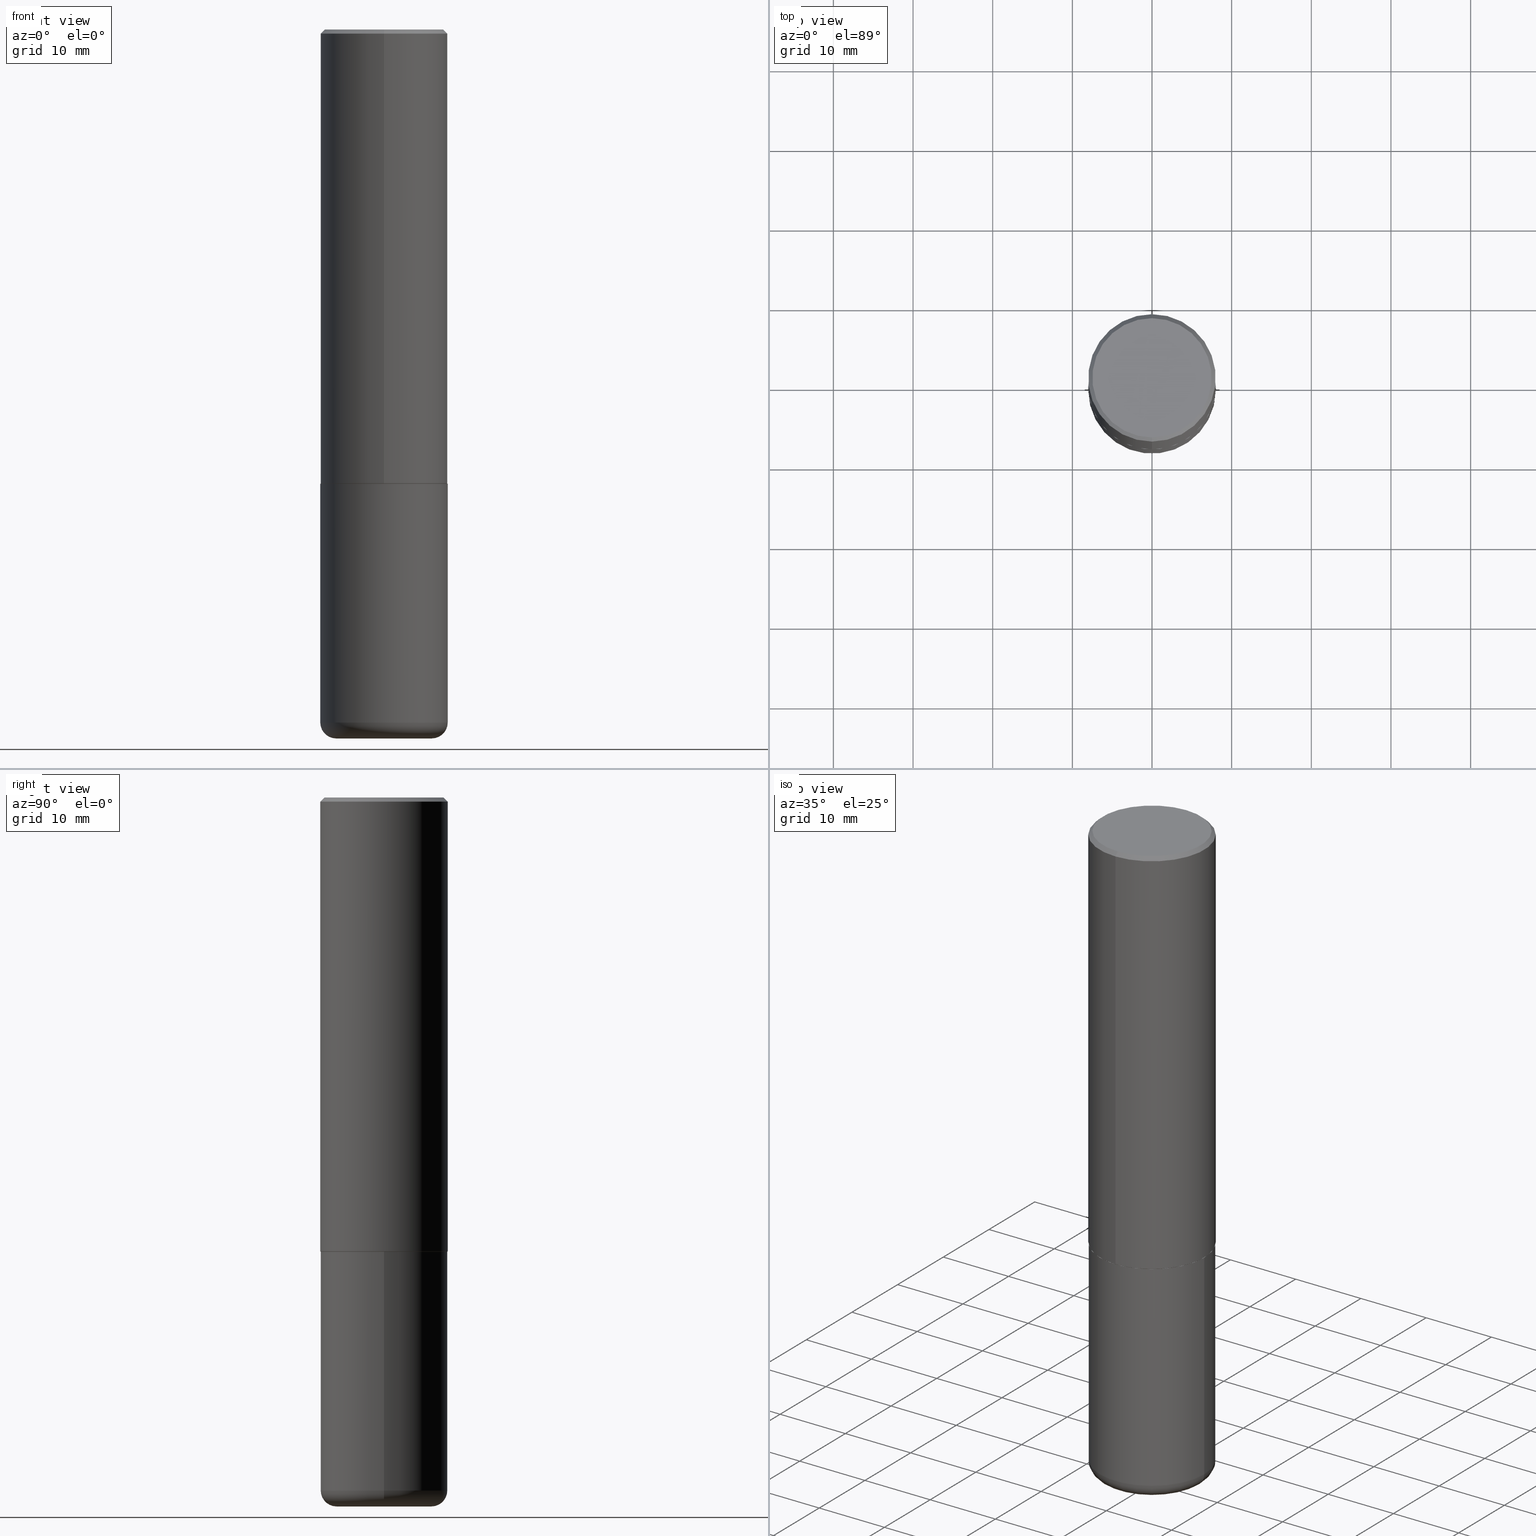
[diagram: canonical four-view strip — front | top / right | iso, engineering-drawing reading convention]
A machine part, canonical four-view strip (front | top / right | iso — engineering-drawing reading convention). The complete STEP part file that produces these views, byte-faithful:
ISO-10303-21;
HEADER;
FILE_DESCRIPTION (( 'STEP AP203' ),
    '1' );
FILE_NAME ('40039.STEP',
    '2024-03-03T22:05:30',
    ( '' ),
    ( '' ),
    'SwSTEP 2.0',
    'SolidWorks 2023',
    '' );
FILE_SCHEMA (( 'CONFIG_CONTROL_DESIGN' ));
ENDSEC;

DATA;
#1 = ORIENTED_EDGE ( 'NONE', *, *, #224, .T. ) ;
#2 = VECTOR ( 'NONE', #98, 39.37007874015748854 ) ;
#3 = EDGE_LOOP ( 'NONE', ( #384, #321, #167, #15 ) ) ;
#4 = APPROVAL_ROLE ( '' ) ;
#5 = EDGE_CURVE ( 'NONE', #13, #195, #62, .T. ) ;
#6 = DIRECTION ( 'NONE',  ( -2.445102122258518808E-29, 3.492006451096415256E-15, 1.000000000000000000 ) ) ;
#7 = ORIENTED_EDGE ( 'NONE', *, *, #312, .T. ) ;
#8 = DIRECTION ( 'NONE',  ( 1.000000000000000000, 0.000000000000000000, 0.000000000000000000 ) ) ;
#9 = EDGE_LOOP ( 'NONE', ( #302, #267, #309, #370 ) ) ;
#10 = VECTOR ( 'NONE', #311, 39.37007874015748143 ) ;
#11 = AXIS2_PLACEMENT_3D ( 'NONE', #23, #407, #378 ) ;
#12 = EDGE_CURVE ( 'NONE', #195, #274, #61, .T. ) ;
#13 = VERTEX_POINT ( 'NONE', #159 ) ;
#14 = CARTESIAN_POINT ( 'NONE',  ( 0.000000000000000000, 0.000000000000000000, 0.000000000000000000 ) ) ;
#15 = ORIENTED_EDGE ( 'NONE', *, *, #96, .F. ) ;
#16 = DIRECTION ( 'NONE',  ( -6.982962677686264344E-15, -1.000000000000000000, 3.492006451096414862E-15 ) ) ;
#17 = AXIS2_PLACEMENT_3D ( 'NONE', #188, #324, #24 ) ;
#18 = DIRECTION ( 'NONE',  ( -2.445102122258518808E-29, 3.492006451096415256E-15, 1.000000000000000000 ) ) ;
#19 = PRODUCT_DEFINITION_SHAPE ( 'NONE', 'NONE',  #364 ) ;
#20 = PERSON_AND_ORGANIZATION_ROLE ( 'classification_officer' ) ;
#21 = ORIENTED_EDGE ( 'NONE', *, *, #118, .F. ) ;
#22 = CC_DESIGN_DATE_AND_TIME_ASSIGNMENT ( #310, #291, ( #364 ) ) ;
#23 = CARTESIAN_POINT ( 'NONE',  ( 4.890204244517054362E-31, -6.984012902192854425E-17, -0.02000000000000006981 ) ) ;
#24 = DIRECTION ( 'NONE',  ( 1.000000000000000000, -6.982962677686266711E-15, 4.876176775795936353E-29 ) ) ;
#25 = CARTESIAN_POINT ( 'NONE',  ( 4.890204244517054362E-31, -6.984012902192854425E-17, -0.02000000000000006981 ) ) ;
#26 = ORIENTED_EDGE ( 'NONE', *, *, #66, .T. ) ;
#27 = DIRECTION ( 'NONE',  ( 1.000000000000000000, -6.982962677686276177E-15, 0.000000000000000000 ) ) ;
#28 = CIRCLE ( 'NONE', #398, 0.2362500000000000155 ) ;
#29 = DIRECTION ( 'NONE',  ( -2.445102122258518808E-29, 3.492006451096415256E-15, 1.000000000000000000 ) ) ;
#30 = VECTOR ( 'NONE', #323, 39.37007874015748143 ) ;
#31 = ORIENTED_EDGE ( 'NONE', *, *, #237, .F. ) ;
#32 = EDGE_CURVE ( 'NONE', #303, #381, #87, .T. ) ;
#33 = FACE_OUTER_BOUND ( 'NONE', #9, .T. ) ;
#34 = EDGE_LOOP ( 'NONE', ( #293, #184 ) ) ;
#35 = ORIENTED_EDGE ( 'NONE', *, *, #175, .F. ) ;
#36 = CARTESIAN_POINT ( 'NONE',  ( -0.2362500000000000155, -1.028036466857230575E-14, -3.425199999999999800 ) ) ;
#37 = VECTOR ( 'NONE', #230, 39.37007874015748854 ) ;
#38 = EDGE_CURVE ( 'NONE', #243, #303, #226, .T. ) ;
#39 = DIRECTION ( 'NONE',  ( -2.445102122258518808E-29, 3.492006451096415256E-15, 1.000000000000000000 ) ) ;
#40 = VERTEX_POINT ( 'NONE', #389 ) ;
#41 = CARTESIAN_POINT ( 'NONE',  ( 2.237854346276435985E-15, 0.3149500000000001743, -1.099807431772816467E-15 ) ) ;
#42 = ORIENTED_EDGE ( 'NONE', *, *, #66, .F. ) ;
#43 = APPLICATION_PROTOCOL_DEFINITION ( 'international standard', 'config_control_design', 1994, #340 ) ;
#44 = AXIS2_PLACEMENT_3D ( 'NONE', #235, #201, #16 ) ;
#45 = ORIENTED_EDGE ( 'NONE', *, *, #168, .F. ) ;
#46 = CARTESIAN_POINT ( 'NONE',  ( 5.487053672560341153E-29, -7.836411676905464686E-15, -2.244099999999999540 ) ) ;
#47 = CALENDAR_DATE ( 2024, 3, 3 ) ;
#48 = PRODUCT_RELATED_PRODUCT_CATEGORY ( 'detail', '', ( #285 ) ) ;
#49 = CIRCLE ( 'NONE', #289, 0.3149500000000000077 ) ;
#50 = LOCAL_TIME ( 17, 5, 30.00000000000000000, #171 ) ;
#51 = VERTEX_POINT ( 'NONE', #356 ) ;
#52 = DATE_TIME_ROLE ( 'classification_date' ) ;
#53 = LINE ( 'NONE', #147, #103 ) ;
#54 = EDGE_CURVE ( 'NONE', #262, #51, #314, .T. ) ;
#55 = CC_DESIGN_APPROVAL ( #79, ( #64 ) ) ;
#56 = CYLINDRICAL_SURFACE ( 'NONE', #17, 0.3149500000000000077 ) ;
#57 = ORIENTED_EDGE ( 'NONE', *, *, #175, .T. ) ;
#58 = DIRECTION ( 'NONE',  ( 1.000000000000000000, -6.982962677686269866E-15, 0.000000000000000000 ) ) ;
#59 = ORIENTED_EDGE ( 'NONE', *, *, #122, .T. ) ;
#60 = EDGE_CURVE ( 'NONE', #381, #320, #74, .T. ) ;
#61 = LINE ( 'NONE', #228, #193 ) ;
#62 = CIRCLE ( 'NONE', #210, 0.2949499999999999345 ) ;
#63 = DIRECTION ( 'NONE',  ( -2.445468806185136597E-29, 3.491481338843145583E-15, 1.000000000000000000 ) ) ;
#64 = PRODUCT_DEFINITION_FORMATION_WITH_SPECIFIED_SOURCE ( 'ANY', '', #285, .NOT_KNOWN. ) ;
#65 = ORIENTED_EDGE ( 'NONE', *, *, #12, .F. ) ;
#66 = EDGE_CURVE ( 'NONE', #320, #40, #191, .T. ) ;
#67 = DIRECTION ( 'NONE',  ( -2.445102122258518808E-29, 3.492006451096415256E-15, 1.000000000000000000 ) ) ;
#68 = CARTESIAN_POINT ( 'NONE',  ( 2.230748918918889014E-15, 0.3139499999999921798, -2.244100000000000872 ) ) ;
#69 = VERTEX_POINT ( 'NONE', #93 ) ;
#70 =( CONVERSION_BASED_UNIT ( 'INCH', #304 ) LENGTH_UNIT ( ) NAMED_UNIT ( #260 ) );
#71 = DIRECTION ( 'NONE',  ( 0.000000000000000000, 0.000000000000000000, 1.000000000000000000 ) ) ;
#72 = CARTESIAN_POINT ( 'NONE',  ( -2.192301132659548636E-15, -0.3139500000000078339, -2.244099999999998651 ) ) ;
#73 = APPROVAL_STATUS ( 'not_yet_approved' ) ;
#74 = CIRCLE ( 'NONE', #239, 0.3149500000000000077 ) ;
#75 = PERSON_AND_ORGANIZATION ( #134, #221 ) ;
#76 = CIRCLE ( 'NONE', #272, 0.3139500000000000068 ) ;
#77 = DIRECTION ( 'NONE',  ( -2.445468806185136597E-29, 3.491481338843145583E-15, 1.000000000000000000 ) ) ;
#78 = PERSON_AND_ORGANIZATION ( #134, #221 ) ;
#79 = APPROVAL ( #316, 'UNSPECIFIED' ) ;
#80 = CARTESIAN_POINT ( 'NONE',  ( 5.484608570438081455E-29, -7.832919670454367656E-15, -2.243099999999999206 ) ) ;
#81 = PERSON_AND_ORGANIZATION ( #134, #221 ) ;
#82 = CIRCLE ( 'NONE', #387, 0.3139500000000000068 ) ;
#83 = COORDINATED_UNIVERSAL_TIME_OFFSET ( 5, 0, .BEHIND. ) ;
#84 = LINE ( 'NONE', #186, #30 ) ;
#85 = PERSON_AND_ORGANIZATION ( #134, #221 ) ;
#86 = DIRECTION ( 'NONE',  ( -6.982962677686266711E-15, -1.000000000000000000, 3.491481338843145583E-15 ) ) ;
#87 = CIRCLE ( 'NONE', #108, 0.07870000000000021423 ) ;
#88 = CARTESIAN_POINT ( 'NONE',  ( 2.237854346276464384E-15, 0.3149499999999924027, -2.243100000000000538 ) ) ;
#89 = ORIENTED_EDGE ( 'NONE', *, *, #5, .F. ) ;
#90 = CC_DESIGN_DATE_AND_TIME_ASSIGNMENT ( #278, #52, ( #113 ) ) ;
#91 = ORIENTED_EDGE ( 'NONE', *, *, #232, .T. ) ;
#92 = LINE ( 'NONE', #234, #37 ) ;
#93 = CARTESIAN_POINT ( 'NONE',  ( 2.234301632597690306E-15, 0.3139499999999921798, -2.244100000000000872 ) ) ;
#94 = AXIS2_PLACEMENT_3D ( 'NONE', #202, #270, #101 ) ;
#95 = AXIS2_PLACEMENT_3D ( 'NONE', #371, #71, #8 ) ;
#96 = EDGE_CURVE ( 'NONE', #238, #51, #92, .T. ) ;
#97 = FACE_OUTER_BOUND ( 'NONE', #156, .T. ) ;
#98 = DIRECTION ( 'NONE',  ( 5.024295867787889629E-15, 0.7071067811865257013, 0.7071067811865691111 ) ) ;
#99 = EDGE_LOOP ( 'NONE', ( #42, #229, #119, #271 ) ) ;
#100 = DATE_AND_TIME ( #130, #50 ) ;
#101 = DIRECTION ( 'NONE',  ( -1.000000000000000000, 6.982962677686265922E-15, -4.876176775795935793E-29 ) ) ;
#102 = VECTOR ( 'NONE', #173, 39.37007874015748143 ) ;
#103 = VECTOR ( 'NONE', #305, 39.37007874015748143 ) ;
#104 = ADVANCED_FACE ( 'NONE', ( #148 ), #415, .T. ) ;
#105 =( LENGTH_UNIT ( ) NAMED_UNIT ( * ) SI_UNIT ( $, .METRE. ) );
#106 = ORIENTED_EDGE ( 'NONE', *, *, #32, .T. ) ;
#107 = FACE_OUTER_BOUND ( 'NONE', #339, .T. ) ;
#108 = AXIS2_PLACEMENT_3D ( 'NONE', #391, #86, #27 ) ;
#109 = LOCAL_TIME ( 17, 5, 30.00000000000000000, #83 ) ;
#110 = PERSON_AND_ORGANIZATION_ROLE ( 'creator' ) ;
#111 = CALENDAR_DATE ( 2024, 3, 3 ) ;
#112 = PERSON_AND_ORGANIZATION ( #134, #221 ) ;
#113 = SECURITY_CLASSIFICATION ( '', '', #251 ) ;
#114 = ADVANCED_FACE ( 'NONE', ( #353 ), #56, .T. ) ;
#115 = CARTESIAN_POINT ( 'NONE',  ( 8.568678149992100595E-29, -1.223380146317249944E-14, -3.503900000000000237 ) ) ;
#116 = CARTESIAN_POINT ( 'NONE',  ( 5.487876547960063631E-29, -7.835233272497900762E-15, -2.244099999999999540 ) ) ;
#117 = AXIS2_PLACEMENT_3D ( 'NONE', #236, #6, #400 ) ;
#118 = EDGE_CURVE ( 'NONE', #395, #40, #336, .T. ) ;
#119 = ORIENTED_EDGE ( 'NONE', *, *, #413, .T. ) ;
#120 = DIRECTION ( 'NONE',  ( -2.445468806185136877E-29, 3.491481338843145188E-15, 1.000000000000000000 ) ) ;
#121 = ORIENTED_EDGE ( 'NONE', *, *, #263, .F. ) ;
#122 = EDGE_CURVE ( 'NONE', #40, #395, #256, .T. ) ;
#123 = ORIENTED_EDGE ( 'NONE', *, *, #38, .T. ) ;
#124 = DIRECTION ( 'NONE',  ( -2.445468806185136597E-29, 3.491481338843145583E-15, 1.000000000000000000 ) ) ;
#125 = VECTOR ( 'NONE', #120, 39.37007874015748143 ) ;
#126 = CC_DESIGN_SECURITY_CLASSIFICATION ( #113, ( #64 ) ) ;
#127 = EDGE_LOOP ( 'NONE', ( #121, #266 ) ) ;
#128 = DIRECTION ( 'NONE',  ( -1.000000000000000000, 7.105427357600997914E-15, 0.000000000000000000 ) ) ;
#129 = ORIENTED_EDGE ( 'NONE', *, *, #32, .F. ) ;
#130 = CALENDAR_DATE ( 2024, 3, 3 ) ;
#131 = MECHANICAL_CONTEXT ( 'NONE', #340, 'mechanical' ) ;
#132 = CARTESIAN_POINT ( 'NONE',  ( 8.568678149992100595E-29, -1.223380146317249944E-14, -3.503900000000000237 ) ) ;
#133 = AXIS2_PLACEMENT_3D ( 'NONE', #14, #63, #402 ) ;
#134 = PERSON ( 'UNSPECIFIED', 'UNSPECIFIED', 'UNSPECIFIED', ('UNSPECIFIED'), ('UNSPECIFIED'), ('UNSPECIFIED') ) ;
#135 = ORIENTED_EDGE ( 'NONE', *, *, #54, .T. ) ;
#136 = APPROVAL ( #223, 'UNSPECIFIED' ) ;
#137 = APPROVAL_DATE_TIME ( #282, #79 ) ;
#138 = CARTESIAN_POINT ( 'NONE',  ( -0.3149500000000001743, -9.721167535529105379E-15, -3.425199999999999800 ) ) ;
#139 = APPROVAL_PERSON_ORGANIZATION ( #75, #300, #4 ) ;
#140 = DIRECTION ( 'NONE',  ( -6.982962677686265922E-15, -1.000000000000000000, 3.492006451096415256E-15 ) ) ;
#141 = FACE_OUTER_BOUND ( 'NONE', #194, .T. ) ;
#142 = DIRECTION ( 'NONE',  ( 2.438088387897960049E-29, -3.491481338843145188E-15, -1.000000000000000000 ) ) ;
#143 = PERSON_AND_ORGANIZATION_ROLE ( 'creator' ) ;
#144 = ADVANCED_FACE ( 'NONE', ( #200 ), #185, .T. ) ;
#145 = CALENDAR_DATE ( 2024, 3, 3 ) ;
#146 = AXIS2_PLACEMENT_3D ( 'NONE', #307, #166, #365 ) ;
#147 = CARTESIAN_POINT ( 'NONE',  ( 0.3149500000000000077, -2.199284095337289871E-15, 1.535751875536930130E-29 ) ) ;
#148 = FACE_OUTER_BOUND ( 'NONE', #3, .T. ) ;
#149 = CARTESIAN_POINT ( 'NONE',  ( 5.487876547960063631E-29, -7.835233272497900762E-15, -2.244099999999999540 ) ) ;
#150 = ADVANCED_FACE ( 'NONE', ( #169 ), #242, .T. ) ;
#151 = DESIGN_CONTEXT ( 'detailed design', #258, 'design' ) ;
#152 = DIRECTION ( 'NONE',  ( 4.937700262164543309E-15, 0.7071067811865444641, -0.7071067811865506814 ) ) ;
#153 = AXIS2_PLACEMENT_3D ( 'NONE', #360, #328, #417 ) ;
#154 = AXIS2_PLACEMENT_3D ( 'NONE', #245, #216, #292 ) ;
#155 = LOCAL_TIME ( 17, 5, 30.00000000000000000, #178 ) ;
#156 = EDGE_LOOP ( 'NONE', ( #390, #135, #212, #31 ) ) ;
#157 = ORIENTED_EDGE ( 'NONE', *, *, #232, .F. ) ;
#158 = LINE ( 'NONE', #41, #102 ) ;
#159 = CARTESIAN_POINT ( 'NONE',  ( -2.092108864420428031E-15, -0.2949499999999999345, 1.060001772040692191E-15 ) ) ;
#160 = CC_DESIGN_PERSON_AND_ORGANIZATION_ASSIGNMENT ( #246, #275, ( #285 ) ) ;
#161 = DIRECTION ( 'NONE',  ( -6.982962677686266711E-15, -1.000000000000000000, 3.480615376543096919E-15 ) ) ;
#162 = ORIENTED_EDGE ( 'NONE', *, *, #60, .F. ) ;
#163 = DIRECTION ( 'NONE',  ( 7.105427357601001859E-15, 1.000000000000000000, -3.491481338843145583E-15 ) ) ;
#164 = CIRCLE ( 'NONE', #374, 0.07870000000000021423 ) ;
#165 = DIRECTION ( 'NONE',  ( 2.445102122258518808E-29, -3.492006451096415256E-15, -1.000000000000000000 ) ) ;
#166 = DIRECTION ( 'NONE',  ( -2.445468806185136597E-29, 3.491481338843145583E-15, 1.000000000000000000 ) ) ;
#167 = ORIENTED_EDGE ( 'NONE', *, *, #385, .F. ) ;
#168 = EDGE_CURVE ( 'NONE', #320, #381, #49, .T. ) ;
#169 = FACE_OUTER_BOUND ( 'NONE', #227, .T. ) ;
#170 = DIRECTION ( 'NONE',  ( -6.982962677686267499E-15, -1.000000000000000000, 3.492006451096415256E-15 ) ) ;
#171 = COORDINATED_UNIVERSAL_TIME_OFFSET ( 5, 0, .BEHIND. ) ;
#172 = CLOSED_SHELL ( 'NONE', ( #114, #325, #196, #273, #144, #189 ) ) ;
#173 = DIRECTION ( 'NONE',  ( -2.445102122258518808E-29, 3.492006451096415256E-15, 1.000000000000000000 ) ) ;
#174 = CYLINDRICAL_SURFACE ( 'NONE', #133, 0.3149500000000000077 ) ;
#175 = EDGE_CURVE ( 'NONE', #243, #320, #164, .T. ) ;
#176 = ORIENTED_EDGE ( 'NONE', *, *, #118, .T. ) ;
#177 = CARTESIAN_POINT ( 'NONE',  ( 0.2362500000000000155, -1.388352639577588105E-14, -3.503900000000000237 ) ) ;
#178 = COORDINATED_UNIVERSAL_TIME_OFFSET ( 5, 0, .BEHIND. ) ;
#179 = AXIS2_PLACEMENT_3D ( 'NONE', #215, #142, #286 ) ;
#180 = CARTESIAN_POINT ( 'NONE',  ( 5.487053672560341153E-29, -7.836411676905464686E-15, -2.244099999999999540 ) ) ;
#181 = DIRECTION ( 'NONE',  ( 6.982962677686265922E-15, 1.000000000000000000, -3.492006451096415256E-15 ) ) ;
#182 = EDGE_CURVE ( 'NONE', #69, #262, #269, .T. ) ;
#183 = DIRECTION ( 'NONE',  ( 2.445102122258518528E-29, -3.492006451096415256E-15, -1.000000000000000000 ) ) ;
#184 = ORIENTED_EDGE ( 'NONE', *, *, #268, .F. ) ;
#185 = TOROIDAL_SURFACE ( 'NONE', #146, 0.2362500000000000155, 0.07870000000000022811 ) ;
#186 = CARTESIAN_POINT ( 'NONE',  ( -2.199284095337290265E-15, -0.3149500000000001743, 1.099807431772816467E-15 ) ) ;
#187 = AXIS2_PLACEMENT_3D ( 'NONE', #80, #18, #349 ) ;
#188 = CARTESIAN_POINT ( 'NONE',  ( 0.000000000000000000, 0.000000000000000000, 0.000000000000000000 ) ) ;
#189 = ADVANCED_FACE ( 'NONE', ( #366 ), #368, .T. ) ;
#190 = ORIENTED_EDGE ( 'NONE', *, *, #224, .F. ) ;
#191 = LINE ( 'NONE', #298, #125 ) ;
#192 = EDGE_LOOP ( 'NONE', ( #351, #157, #199, #204 ) ) ;
#193 = VECTOR ( 'NONE', #152, 39.37007874015748143 ) ;
#194 = EDGE_LOOP ( 'NONE', ( #91, #222 ) ) ;
#195 = VERTEX_POINT ( 'NONE', #206 ) ;
#196 = ADVANCED_FACE ( 'NONE', ( #338 ), #319, .F. ) ;
#197 = DIRECTION ( 'NONE',  ( -2.445102122258518808E-29, 3.492006451096415256E-15, 1.000000000000000000 ) ) ;
#198 = CARTESIAN_POINT ( 'NONE',  ( 5.487053672560341153E-29, -7.836411676905464686E-15, -2.244099999999999540 ) ) ;
#199 = ORIENTED_EDGE ( 'NONE', *, *, #12, .T. ) ;
#200 = FACE_OUTER_BOUND ( 'NONE', #326, .T. ) ;
#201 = DIRECTION ( 'NONE',  ( -2.445102122258518808E-29, 3.492006451096415256E-15, 1.000000000000000000 ) ) ;
#202 = CARTESIAN_POINT ( 'NONE',  ( 2.910115444035764499E-29, -2.033718532349013866E-14, -3.503899999999999793 ) ) ;
#203 = EDGE_CURVE ( 'NONE', #262, #274, #158, .T. ) ;
#204 = ORIENTED_EDGE ( 'NONE', *, *, #237, .T. ) ;
#205 = APPROVAL_DATE_TIME ( #100, #300 ) ;
#206 = CARTESIAN_POINT ( 'NONE',  ( 2.129454468560426967E-15, 0.2949499999999999345, -9.999328334610827920E-16 ) ) ;
#207 = PERSON_AND_ORGANIZATION ( #134, #221 ) ;
#208 = CC_DESIGN_PERSON_AND_ORGANIZATION_ASSIGNMENT ( #85, #344, ( #64 ) ) ;
#209 = CARTESIAN_POINT ( 'NONE',  ( -0.2362500000000000155, -1.013815589273418302E-14, -3.503900000000000237 ) ) ;
#210 = AXIS2_PLACEMENT_3D ( 'NONE', #299, #412, #330 ) ;
#211 = APPROVAL_PERSON_ORGANIZATION ( #250, #136, #383 ) ;
#212 = ORIENTED_EDGE ( 'NONE', *, *, #369, .T. ) ;
#213 = DIRECTION ( 'NONE',  ( -6.982962677686266711E-15, -1.000000000000000000, 3.480615376543096919E-15 ) ) ;
#214 = DIRECTION ( 'NONE',  ( -2.445102122258518808E-29, 3.492006451096415256E-15, 1.000000000000000000 ) ) ;
#215 = CARTESIAN_POINT ( 'NONE',  ( 5.487876547960063631E-29, -7.835233272497900762E-15, -2.244099999999999540 ) ) ;
#216 = DIRECTION ( 'NONE',  ( -2.445102122258518808E-29, 3.492006451096415256E-15, 1.000000000000000000 ) ) ;
#217 = COORDINATED_UNIVERSAL_TIME_OFFSET ( 5, 0, .BEHIND. ) ;
#218 = DIRECTION ( 'NONE',  ( -6.982962677686266711E-15, -1.000000000000000000, 3.480615376543096919E-15 ) ) ;
#219 = CIRCLE ( 'NONE', #393, 0.2949499999999999345 ) ;
#220 = CONICAL_SURFACE ( 'NONE', #11, 0.3149500000000000077, 0.7853981633974473908 ) ;
#221 = ORGANIZATION ( 'UNSPECIFIED', 'UNSPECIFIED', '' ) ;
#222 = ORIENTED_EDGE ( 'NONE', *, *, #5, .T. ) ;
#223 = APPROVAL_STATUS ( 'not_yet_approved' ) ;
#224 = EDGE_CURVE ( 'NONE', #277, #274, #411, .T. ) ;
#225 = DIRECTION ( 'NONE',  ( -6.982962677686265922E-15, -1.000000000000000000, 3.469564049740290009E-15 ) ) ;
#226 = CIRCLE ( 'NONE', #354, 0.2362500000000000155 ) ;
#227 = EDGE_LOOP ( 'NONE', ( #401, #388, #190, #264 ) ) ;
#228 = CARTESIAN_POINT ( 'NONE',  ( 2.199284095337289871E-15, 0.3149499999999999522, -0.02000000000000116962 ) ) ;
#229 = ORIENTED_EDGE ( 'NONE', *, *, #168, .T. ) ;
#230 = DIRECTION ( 'NONE',  ( -4.937700262164378437E-15, -0.7071067811865208164, 0.7071067811865739960 ) ) ;
#231 = ORIENTED_EDGE ( 'NONE', *, *, #263, .T. ) ;
#232 = EDGE_CURVE ( 'NONE', #195, #13, #219, .T. ) ;
#233 = AXIS2_PLACEMENT_3D ( 'NONE', #373, #77, #394 ) ;
#234 = CARTESIAN_POINT ( 'NONE',  ( -2.192301132659548636E-15, -0.3139500000000078339, -2.244099999999998651 ) ) ;
#235 = CARTESIAN_POINT ( 'NONE',  ( 0.000000000000000000, 0.000000000000000000, 0.000000000000000000 ) ) ;
#236 = CARTESIAN_POINT ( 'NONE',  ( 0.000000000000000000, 0.000000000000000000, 0.000000000000000000 ) ) ;
#237 = EDGE_CURVE ( 'NONE', #274, #277, #345, .T. ) ;
#238 = VERTEX_POINT ( 'NONE', #72 ) ;
#239 = AXIS2_PLACEMENT_3D ( 'NONE', #259, #358, #58 ) ;
#240 = AXIS2_PLACEMENT_3D ( 'NONE', #347, #183, #181 ) ;
#241 = ORIENTED_EDGE ( 'NONE', *, *, #413, .F. ) ;
#242 = CYLINDRICAL_SURFACE ( 'NONE', #117, 0.3149500000000001743 ) ;
#243 = VERTEX_POINT ( 'NONE', #209 ) ;
#244 = CARTESIAN_POINT ( 'NONE',  ( 8.376219754945329068E-29, -1.195902188180554136E-14, -3.425199999999999800 ) ) ;
#245 = CARTESIAN_POINT ( 'NONE',  ( 4.890204244517054362E-31, -6.984012902192854425E-17, -0.02000000000000006981 ) ) ;
#246 = PERSON_AND_ORGANIZATION ( #134, #221 ) ;
#247 = CARTESIAN_POINT ( 'NONE',  ( 4.890204244517054362E-31, -6.984012902192854425E-17, -0.02000000000000006981 ) ) ;
#248 = DIRECTION ( 'NONE',  ( -6.982962677686265922E-15, -1.000000000000000000, 3.496670018878889100E-15 ) ) ;
#249 = DATE_AND_TIME ( #145, #109 ) ;
#250 = PERSON_AND_ORGANIZATION ( #134, #221 ) ;
#251 = SECURITY_CLASSIFICATION_LEVEL ( 'unclassified' ) ;
#252 = TOROIDAL_SURFACE ( 'NONE', #233, 0.2362500000000000155, 0.07870000000000022811 ) ;
#253 = APPROVAL_DATE_TIME ( #249, #136 ) ;
#254 = DIRECTION ( 'NONE',  ( 1.000000000000000000, -6.982962677686269866E-15, 0.000000000000000000 ) ) ;
#255 = DIRECTION ( 'NONE',  ( -2.445468806185136597E-29, 3.491481338843145583E-15, 1.000000000000000000 ) ) ;
#256 = CIRCLE ( 'NONE', #327, 0.3149500000000000077 ) ;
#257 = AXIS2_PLACEMENT_3D ( 'NONE', #247, #165, #279 ) ;
#258 = APPLICATION_CONTEXT ( 'configuration controlled 3d designs of mechanical parts and assemblies' ) ;
#259 = CARTESIAN_POINT ( 'NONE',  ( 8.376219754945329068E-29, -1.195902188180554136E-14, -3.425199999999999800 ) ) ;
#260 = DIMENSIONAL_EXPONENTS ( 1.000000000000000000, 0.000000000000000000, 0.000000000000000000, 0.000000000000000000, 0.000000000000000000, 0.000000000000000000, 0.000000000000000000 ) ;
#261 = ADVANCED_BREP_SHAPE_REPRESENTATION ( '40039', ( #403, #406, #95 ), #322 ) ;
#262 = VERTEX_POINT ( 'NONE', #88 ) ;
#263 = EDGE_CURVE ( 'NONE', #303, #243, #28, .T. ) ;
#264 = ORIENTED_EDGE ( 'NONE', *, *, #369, .F. ) ;
#265 = FACE_OUTER_BOUND ( 'NONE', #34, .T. ) ;
#266 = ORIENTED_EDGE ( 'NONE', *, *, #38, .F. ) ;
#267 = ORIENTED_EDGE ( 'NONE', *, *, #268, .T. ) ;
#268 = EDGE_CURVE ( 'NONE', #69, #238, #82, .T. ) ;
#269 = LINE ( 'NONE', #68, #2 ) ;
#270 = DIRECTION ( 'NONE',  ( 2.438088387897960049E-29, -3.491481338843145188E-15, -1.000000000000000000 ) ) ;
#271 = ORIENTED_EDGE ( 'NONE', *, *, #122, .F. ) ;
#272 = AXIS2_PLACEMENT_3D ( 'NONE', #180, #214, #218 ) ;
#273 = ADVANCED_FACE ( 'NONE', ( #361 ), #174, .T. ) ;
#274 = VERTEX_POINT ( 'NONE', #329 ) ;
#275 = PERSON_AND_ORGANIZATION_ROLE ( 'design_owner' ) ;
#276 = LINE ( 'NONE', #332, #10 ) ;
#277 = VERTEX_POINT ( 'NONE', #404 ) ;
#278 = DATE_AND_TIME ( #346, #155 ) ;
#279 = DIRECTION ( 'NONE',  ( 6.982962677686265922E-15, 1.000000000000000000, -3.496670018878889100E-15 ) ) ;
#280 = AXIS2_PLACEMENT_3D ( 'NONE', #377, #288, #140 ) ;
#281 = LOCAL_TIME ( 17, 5, 30.00000000000000000, #217 ) ;
#282 = DATE_AND_TIME ( #111, #281 ) ;
#283 = CARTESIAN_POINT ( 'NONE',  ( 0.3149500000000001743, -1.415830597714283281E-14, -3.425199999999999800 ) ) ;
#284 = CC_DESIGN_PERSON_AND_ORGANIZATION_ASSIGNMENT ( #81, #20, ( #113 ) ) ;
#285 = PRODUCT ( '40039', '40039', '', ( #131 ) ) ;
#286 = DIRECTION ( 'NONE',  ( -1.000000000000000000, 6.982962677686265922E-15, -4.876176775795935793E-29 ) ) ;
#287 = COORDINATED_UNIVERSAL_TIME_OFFSET ( 5, 0, .BEHIND. ) ;
#288 = DIRECTION ( 'NONE',  ( -2.445102122258518528E-29, 3.492006451096415256E-15, 1.000000000000000000 ) ) ;
#289 = AXIS2_PLACEMENT_3D ( 'NONE', #244, #124, #333 ) ;
#290 = CC_DESIGN_PERSON_AND_ORGANIZATION_ASSIGNMENT ( #78, #110, ( #64 ) ) ;
#291 = DATE_TIME_ROLE ( 'creation_date' ) ;
#292 = DIRECTION ( 'NONE',  ( -6.982962677686265922E-15, -1.000000000000000000, 3.496670018878889100E-15 ) ) ;
#293 = ORIENTED_EDGE ( 'NONE', *, *, #375, .F. ) ;
#294 = DIRECTION ( 'NONE',  ( -2.445468806185136597E-29, 3.491481338843145583E-15, 1.000000000000000000 ) ) ;
#295 = CARTESIAN_POINT ( 'NONE',  ( 5.484608570438081455E-29, -7.832919670454367656E-15, -2.243099999999999206 ) ) ;
#296 = AXIS2_PLACEMENT_3D ( 'NONE', #295, #197, #225 ) ;
#297 = APPROVAL_PERSON_ORGANIZATION ( #112, #79, #408 ) ;
#298 = CARTESIAN_POINT ( 'NONE',  ( -0.3149500000000000077, 2.237854346276435590E-15, -1.549218606675782676E-29 ) ) ;
#299 = CARTESIAN_POINT ( 'NONE',  ( -7.343734460140996692E-46, 1.048805605152554396E-31, 3.003446928980477950E-17 ) ) ;
#300 = APPROVAL ( #73, 'UNSPECIFIED' ) ;
#301 = EDGE_LOOP ( 'NONE', ( #89, #7, #1, #65 ) ) ;
#302 = ORIENTED_EDGE ( 'NONE', *, *, #182, .F. ) ;
#303 = VERTEX_POINT ( 'NONE', #177 ) ;
#304 = LENGTH_MEASURE_WITH_UNIT ( LENGTH_MEASURE( 0.02539999999999999897 ), #105 );
#305 = DIRECTION ( 'NONE',  ( -2.445468806185136877E-29, 3.491481338843145188E-15, 1.000000000000000000 ) ) ;
#306 = AXIS2_PLACEMENT_3D ( 'NONE', #149, #294, #414 ) ;
#307 = CARTESIAN_POINT ( 'NONE',  ( 8.376219754945329068E-29, -1.195902188180554136E-14, -3.425199999999999800 ) ) ;
#308 = ADVANCED_FACE ( 'NONE', ( #33 ), #362, .T. ) ;
#309 = ORIENTED_EDGE ( 'NONE', *, *, #96, .T. ) ;
#310 = DATE_AND_TIME ( #47, #315 ) ;
#311 = DIRECTION ( 'NONE',  ( -4.851104656540959542E-15, -0.7071067811865493491, -0.7071067811865457964 ) ) ;
#312 = EDGE_CURVE ( 'NONE', #13, #277, #276, .T. ) ;
#313 = SHAPE_DEFINITION_REPRESENTATION ( #19, #261 ) ;
#314 = CIRCLE ( 'NONE', #296, 0.3149500000000002853 ) ;
#315 = LOCAL_TIME ( 17, 5, 30.00000000000000000, #287 ) ;
#316 = APPROVAL_STATUS ( 'not_yet_approved' ) ;
#317 = DIRECTION ( 'NONE',  ( -2.445468806185136597E-29, 3.491481338843145583E-15, 1.000000000000000000 ) ) ;
#318 = FACE_OUTER_BOUND ( 'NONE', #301, .T. ) ;
#319 = PLANE ( 'NONE',  #179 ) ;
#320 = VERTEX_POINT ( 'NONE', #138 ) ;
#321 = ORIENTED_EDGE ( 'NONE', *, *, #182, .T. ) ;
#322 =( GEOMETRIC_REPRESENTATION_CONTEXT ( 3 ) GLOBAL_UNCERTAINTY_ASSIGNED_CONTEXT ( ( #352 ) ) GLOBAL_UNIT_ASSIGNED_CONTEXT ( ( #70, #335, #341 ) ) REPRESENTATION_CONTEXT ( 'NONE', 'WORKASPACE' ) );
#323 = DIRECTION ( 'NONE',  ( -2.445102122258518808E-29, 3.492006451096415256E-15, 1.000000000000000000 ) ) ;
#324 = DIRECTION ( 'NONE',  ( -2.445468806185136597E-29, 3.491481338843145583E-15, 1.000000000000000000 ) ) ;
#325 = ADVANCED_FACE ( 'NONE', ( #107 ), #252, .T. ) ;
#326 = EDGE_LOOP ( 'NONE', ( #35, #123, #106, #45 ) ) ;
#327 = AXIS2_PLACEMENT_3D ( 'NONE', #116, #255, #386 ) ;
#328 = DIRECTION ( 'NONE',  ( -2.445102122258518808E-29, 3.492006451096415256E-15, 1.000000000000000000 ) ) ;
#329 = CARTESIAN_POINT ( 'NONE',  ( 2.199284095337289871E-15, 0.3149499999999999522, -0.02000000000000116962 ) ) ;
#330 = DIRECTION ( 'NONE',  ( -6.982962677686267499E-15, -1.000000000000000000, 3.492006451096415256E-15 ) ) ;
#331 = ADVANCED_FACE ( 'NONE', ( #97 ), #418, .T. ) ;
#332 = CARTESIAN_POINT ( 'NONE',  ( -2.160713844398143363E-15, -0.3149500000000000632, -0.01999999999999896652 ) ) ;
#333 = DIRECTION ( 'NONE',  ( 1.000000000000000000, -6.982962677686269866E-15, 0.000000000000000000 ) ) ;
#334 = FACE_OUTER_BOUND ( 'NONE', #192, .T. ) ;
#335 =( NAMED_UNIT ( * ) PLANE_ANGLE_UNIT ( ) SI_UNIT ( $, .RADIAN. ) );
#336 = CIRCLE ( 'NONE', #306, 0.3149500000000000077 ) ;
#337 = DIRECTION ( 'NONE',  ( 1.000000000000000000, -6.982962677686269866E-15, 0.000000000000000000 ) ) ;
#338 = FACE_OUTER_BOUND ( 'NONE', #343, .T. ) ;
#339 = EDGE_LOOP ( 'NONE', ( #231, #57, #162, #129 ) ) ;
#340 = APPLICATION_CONTEXT ( 'configuration controlled 3d designs of mechanical parts and assemblies' ) ;
#341 =( NAMED_UNIT ( * ) SI_UNIT ( $, .STERADIAN. ) SOLID_ANGLE_UNIT ( ) );
#342 = CLOSED_SHELL ( 'NONE', ( #104, #150, #382, #350, #331, #308, #357, #396 ) ) ;
#343 = EDGE_LOOP ( 'NONE', ( #176, #59 ) ) ;
#344 = PERSON_AND_ORGANIZATION_ROLE ( 'design_supplier' ) ;
#345 = CIRCLE ( 'NONE', #154, 0.3149500000000000077 ) ;
#346 = CALENDAR_DATE ( 2024, 3, 3 ) ;
#347 = CARTESIAN_POINT ( 'NONE',  ( 2.059624841783564063E-15, 0.2949499999999999345, -1.014950068105985043E-15 ) ) ;
#348 = CARTESIAN_POINT ( 'NONE',  ( -7.343734460140996692E-46, 1.048805605152554396E-31, 3.003446928980477950E-17 ) ) ;
#349 = DIRECTION ( 'NONE',  ( -6.982962677686265922E-15, -1.000000000000000000, 3.469564049740290009E-15 ) ) ;
#350 = ADVANCED_FACE ( 'NONE', ( #334 ), #376, .T. ) ;
#351 = ORIENTED_EDGE ( 'NONE', *, *, #312, .F. ) ;
#352 = UNCERTAINTY_MEASURE_WITH_UNIT (LENGTH_MEASURE( 1.000000000000000082E-05 ), #70, 'distance_accuracy_value', 'NONE');
#353 = FACE_OUTER_BOUND ( 'NONE', #399, .T. ) ;
#354 = AXIS2_PLACEMENT_3D ( 'NONE', #115, #416, #254 ) ;
#355 = CC_DESIGN_APPROVAL ( #136, ( #113 ) ) ;
#356 = CARTESIAN_POINT ( 'NONE',  ( -2.199284095337236228E-15, -0.3149500000000081124, -2.243099999999998317 ) ) ;
#357 = ADVANCED_FACE ( 'NONE', ( #265 ), #392, .F. ) ;
#358 = DIRECTION ( 'NONE',  ( -2.445468806185136597E-29, 3.491481338843145583E-15, 1.000000000000000000 ) ) ;
#359 = ORIENTED_EDGE ( 'NONE', *, *, #60, .T. ) ;
#360 = CARTESIAN_POINT ( 'NONE',  ( 5.487053672560341153E-29, -7.836411676905464686E-15, -2.244099999999999540 ) ) ;
#361 = FACE_OUTER_BOUND ( 'NONE', #99, .T. ) ;
#362 = CONICAL_SURFACE ( 'NONE', #380, 0.3139500000000000068, 0.7853981633974141952 ) ;
#363 = DIRECTION ( 'NONE',  ( -2.445102122258518808E-29, 3.492006451096415256E-15, 1.000000000000000000 ) ) ;
#364 = PRODUCT_DEFINITION ( 'UNKNOWN', '', #64, #151 ) ;
#365 = DIRECTION ( 'NONE',  ( 1.000000000000000000, -6.982962677686265133E-15, 4.883557194083112901E-29 ) ) ;
#366 = FACE_OUTER_BOUND ( 'NONE', #127, .T. ) ;
#367 = CIRCLE ( 'NONE', #187, 0.3149500000000002853 ) ;
#368 = PLANE ( 'NONE',  #94 ) ;
#369 = EDGE_CURVE ( 'NONE', #51, #277, #84, .T. ) ;
#370 = ORIENTED_EDGE ( 'NONE', *, *, #54, .F. ) ;
#371 = CARTESIAN_POINT ( 'NONE',  ( 0.000000000000000000, 0.000000000000000000, 0.000000000000000000 ) ) ;
#372 = APPLICATION_PROTOCOL_DEFINITION ( 'international standard', 'config_control_design', 1994, #258 ) ;
#373 = CARTESIAN_POINT ( 'NONE',  ( 8.376219754945329068E-29, -1.195902188180554136E-14, -3.425199999999999800 ) ) ;
#374 = AXIS2_PLACEMENT_3D ( 'NONE', #36, #163, #128 ) ;
#375 = EDGE_CURVE ( 'NONE', #238, #69, #76, .T. ) ;
#376 = CONICAL_SURFACE ( 'NONE', #257, 0.3149500000000000077, 0.7853981633974473908 ) ;
#377 = CARTESIAN_POINT ( 'NONE',  ( 5.487053672560341153E-29, -7.836411676905464686E-15, -2.244099999999999540 ) ) ;
#378 = DIRECTION ( 'NONE',  ( 6.982962677686265922E-15, 1.000000000000000000, -3.496670018878889100E-15 ) ) ;
#379 = PLANE ( 'NONE',  #240 ) ;
#380 = AXIS2_PLACEMENT_3D ( 'NONE', #198, #67, #161 ) ;
#381 = VERTEX_POINT ( 'NONE', #283 ) ;
#382 = ADVANCED_FACE ( 'NONE', ( #318 ), #220, .T. ) ;
#383 = APPROVAL_ROLE ( '' ) ;
#384 = ORIENTED_EDGE ( 'NONE', *, *, #375, .T. ) ;
#385 = EDGE_CURVE ( 'NONE', #51, #262, #367, .T. ) ;
#386 = DIRECTION ( 'NONE',  ( 1.000000000000000000, -6.982962677686263555E-15, 0.000000000000000000 ) ) ;
#387 = AXIS2_PLACEMENT_3D ( 'NONE', #46, #39, #213 ) ;
#388 = ORIENTED_EDGE ( 'NONE', *, *, #203, .T. ) ;
#389 = CARTESIAN_POINT ( 'NONE',  ( -0.3149500000000000077, -7.659273230875285867E-15, -2.244099999999999540 ) ) ;
#390 = ORIENTED_EDGE ( 'NONE', *, *, #203, .F. ) ;
#391 = CARTESIAN_POINT ( 'NONE',  ( 0.2362500000000000155, -1.360874681440892298E-14, -3.425199999999999800 ) ) ;
#392 = PLANE ( 'NONE',  #280 ) ;
#393 = AXIS2_PLACEMENT_3D ( 'NONE', #348, #29, #170 ) ;
#394 = DIRECTION ( 'NONE',  ( 1.000000000000000000, -6.982962677686265133E-15, 4.883557194083112901E-29 ) ) ;
#395 = VERTEX_POINT ( 'NONE', #410 ) ;
#396 = ADVANCED_FACE ( 'NONE', ( #141 ), #379, .F. ) ;
#397 = AXIS2_PLACEMENT_3D ( 'NONE', #25, #363, #248 ) ;
#398 = AXIS2_PLACEMENT_3D ( 'NONE', #132, #317, #337 ) ;
#399 = EDGE_LOOP ( 'NONE', ( #359, #26, #21, #241 ) ) ;
#400 = DIRECTION ( 'NONE',  ( -6.982962677686264344E-15, -1.000000000000000000, 3.492006451096414862E-15 ) ) ;
#401 = ORIENTED_EDGE ( 'NONE', *, *, #385, .T. ) ;
#402 = DIRECTION ( 'NONE',  ( 1.000000000000000000, -6.982962677686266711E-15, 4.876176775795936353E-29 ) ) ;
#403 = MANIFOLD_SOLID_BREP ( 'Body-Move/Copy2[1]', #172 ) ;
#404 = CARTESIAN_POINT ( 'NONE',  ( -2.160713844398143363E-15, -0.3149500000000000632, -0.01999999999999896652 ) ) ;
#405 = CC_DESIGN_APPROVAL ( #300, ( #364 ) ) ;
#406 = MANIFOLD_SOLID_BREP ( 'Body-Move/Copy2[2]', #342 ) ;
#407 = DIRECTION ( 'NONE',  ( 2.445102122258518808E-29, -3.492006451096415256E-15, -1.000000000000000000 ) ) ;
#408 = APPROVAL_ROLE ( '' ) ;
#409 = CC_DESIGN_PERSON_AND_ORGANIZATION_ASSIGNMENT ( #207, #143, ( #364 ) ) ;
#410 = CARTESIAN_POINT ( 'NONE',  ( 0.3149500000000000077, -1.003451736783518906E-14, -2.244099999999999540 ) ) ;
#411 = CIRCLE ( 'NONE', #397, 0.3149500000000000077 ) ;
#412 = DIRECTION ( 'NONE',  ( -2.445102122258518808E-29, 3.492006451096415256E-15, 1.000000000000000000 ) ) ;
#413 = EDGE_CURVE ( 'NONE', #381, #395, #53, .T. ) ;
#414 = DIRECTION ( 'NONE',  ( 1.000000000000000000, -6.982962677686263555E-15, 0.000000000000000000 ) ) ;
#415 = CONICAL_SURFACE ( 'NONE', #153, 0.3139500000000000068, 0.7853981633974141952 ) ;
#416 = DIRECTION ( 'NONE',  ( -2.445468806185136597E-29, 3.491481338843145583E-15, 1.000000000000000000 ) ) ;
#417 = DIRECTION ( 'NONE',  ( -6.982962677686266711E-15, -1.000000000000000000, 3.480615376543096919E-15 ) ) ;
#418 = CYLINDRICAL_SURFACE ( 'NONE', #44, 0.3149500000000001743 ) ;
ENDSEC;
END-ISO-10303-21;
